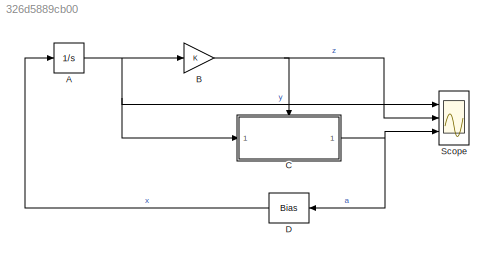
MODEL slx_326d5889cb00
KIND model
CONFIG AbsTol = auto
CONFIG EnableMultiTasking = off
CONFIG FixedStep = auto
CONFIG MaxStep = auto
CONFIG MinStep = auto
CONFIG RelTol = 1e-3
CONFIG SampleTimeConstraint = Unconstrained
CONFIG Solver = VariableStepAuto
CONFIG SolverName = VariableStepAuto
CONFIG StartTime = 0.0
CONFIG StopTime = 3
BLOCK [Integrator] A
  InitialCondition = -1
  Ports = [1, 1]
BLOCK [Gain] B
  SampleTime = 1
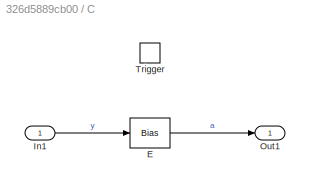
BLOCK [SubSystem] C
  Ports = [1, 1, 0, 1]
  RequestExecContextInheritance = off
  TreatAsAtomicUnit = on
BLOCK [Bias] C/E
  Bias = 1
  SaturateOnIntegerOverflow = off
BLOCK [Inport] C/In1
BLOCK [Outport] C/Out1
  VectorParamsAs1DForOutWhenUnconnected = off
BLOCK [TriggerPort] C/Trigger
  Ports = []
  StatesWhenEnabling = held
  VariantControl = Variant
BLOCK [Bias] D
  Bias = 1
  SaturateOnIntegerOverflow = off
BLOCK [Scope] Scope
  Floating = off
  NumInputPorts = 3
  Ports = [3]
  ScopeSpecificationString = Simulink.scopes.TimeScopeBlockCfg('CurrentConfiguration', extmgr.ConfigurationSet(extmgr.Configuration('Core','General UI',true),extmgr.Configuration('Core','Source UI',true),extmgr.Configuration('Sources','WiredSimulink',true),extmgr.Configuration('Visuals','Time Domain',true,'SerializedDisplays',{struct('MinYLimReal','-1.625','MaxYLimReal','4.625','YLabelReal','','MinYLimMag','0.00000','MaxYLimM...<+2725ch>
NET A:1 -> B:1, C:1, Scope:1
NET B:1 -> C:trigger, Scope:2
LINE C/E:1 -> C/Out1:1
LINE C/In1:1 -> C/E:1
NET C:1 -> D:1, Scope:3
LINE D:1 -> A:1
note: NET lines group one-source signal fan-out (src -> all destinations, sorted); 1:1 wires keep LINE
